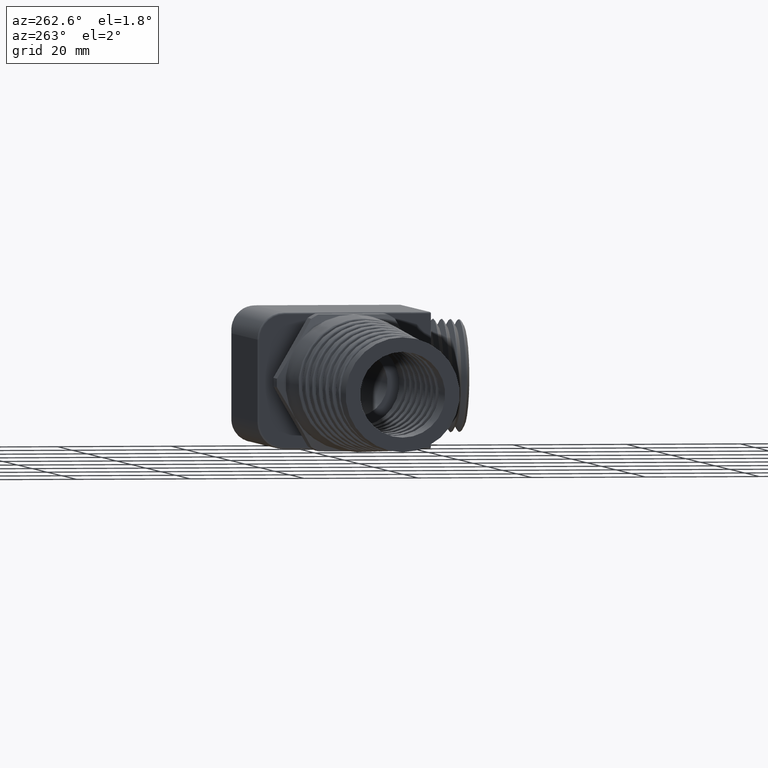
[diagram: clean part render]
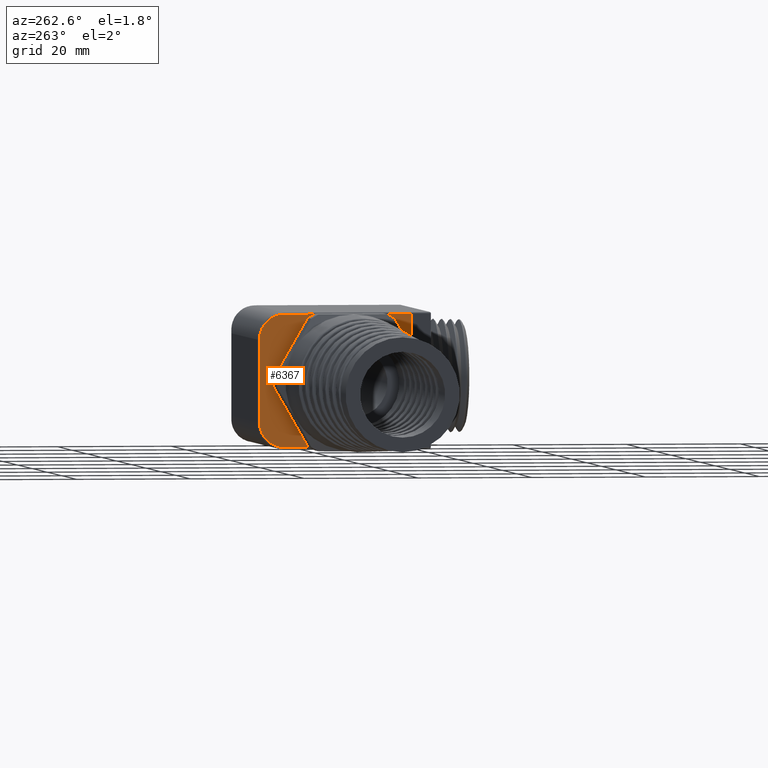
[diagram: same view with one face highlighted and labeled with its STEP entity id]
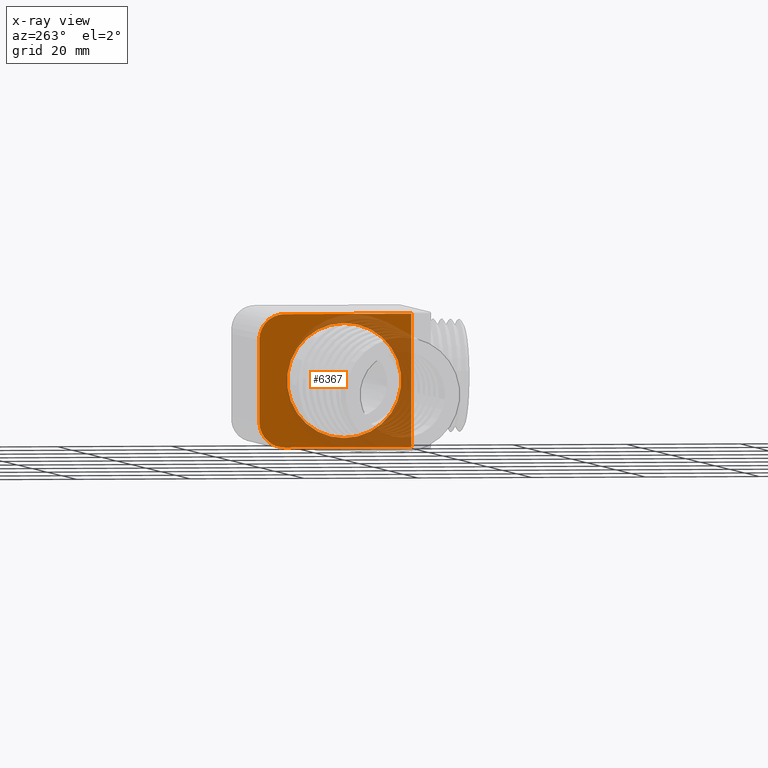
[diagram: x-ray of the same camera — body ghosted, the highlighted face saturated]
A machine part, auxiliary view. The second image highlights one B-rep face of the part: STEP entity #6367.
The next image is the same camera in x-ray: the body ghosted, the highlighted face saturated — about 43% of this face is hidden behind the body in this view.
In plain terms, the highlighted planar face has unit normal (1, 0, 0).
Its self-contained STEP definition (entity closure, byte-faithful):
#3942 = DIRECTION ( 'NONE',  ( -6.418815774587142800E-017, 1.000000000000000000, 0.0000000000000000000 ) ) ;
#3943 = DIRECTION ( 'NONE',  ( -1.000000000000000000, -6.418815774587142800E-017, 0.0000000000000000000 ) ) ;
#3944 = CARTESIAN_POINT ( 'NONE',  ( 3.848330791856151800E-017, 0.0000000000000000000, 0.0000000000000000000 ) ) ;
#3945 = AXIS2_PLACEMENT_3D ( 'NONE', #3944, #3943, #3942 ) ;
#3946 = CIRCLE ( 'NONE', #3945, 0.3950000000000000200 ) ;
#4839 = CARTESIAN_POINT ( 'NONE',  ( 3.848330791856151800E-017, 4.837354856632045600E-017, -0.3950000000000000200 ) ) ;
#4901 = CARTESIAN_POINT ( 'NONE',  ( 3.848330791856151800E-017, 1.627447239949505100E-033, 0.3950000000000000200 ) ) ;
#4902 = CARTESIAN_POINT ( 'NONE',  ( 1.198178944589600400E-017, 0.4133333333333332200, -0.4573446327683614600 ) ) ;
#4903 = DIRECTION ( 'NONE',  ( 6.418815774587142800E-017, -1.000000000000000000, 0.0000000000000000000 ) ) ;
#4904 = VECTOR ( 'NONE', #4903, 39.37007874015748100 ) ;
#4905 = CARTESIAN_POINT ( 'NONE',  ( 6.829619984160658000E-017, -0.4639999999999904800, -0.4573446327683613500 ) ) ;
#4906 = LINE ( 'NONE', #4905, #4904 ) ;
#4923 = DIRECTION ( 'NONE',  ( -6.418815774587142800E-017, 1.000000000000000000, 0.0000000000000000000 ) ) ;
#4924 = DIRECTION ( 'NONE',  ( 1.000000000000000000, 6.418815774587142800E-017, 0.0000000000000000000 ) ) ;
#4925 = CARTESIAN_POINT ( 'NONE',  ( 6.829619984160658000E-017, -0.4639999999999904800, 2.364919523357121200 ) ) ;
#4926 = AXIS2_PLACEMENT_3D ( 'NONE', #4925, #4924, #4923 ) ;
#4927 = PLANE ( 'NONE',  #4926 ) ;
#4928 = FACE_BOUND ( 'NONE', #6397, .T. ) ;
#4929 = FACE_OUTER_BOUND ( 'NONE', #6368, .T. ) ;
#4943 = DIRECTION ( 'NONE',  ( -6.418815774587142800E-017, 1.000000000000000000, 0.0000000000000000000 ) ) ;
#4944 = DIRECTION ( 'NONE',  ( -1.000000000000000000, -6.418815774587142800E-017, 0.0000000000000000000 ) ) ;
#4945 = CARTESIAN_POINT ( 'NONE',  ( 1.280553747030123400E-017, 0.4133333333333332200, -0.2833333333333332100 ) ) ;
#4946 = AXIS2_PLACEMENT_3D ( 'NONE', #4945, #4944, #4943 ) ;
#4947 = CIRCLE ( 'NONE', #4946, 0.1740112994350282700 ) ;
#4948 = CARTESIAN_POINT ( 'NONE',  ( 8.123247081963432300E-019, 0.5873446327683614600, -0.2833333333333332100 ) ) ;
#4949 = DIRECTION ( 'NONE',  ( 0.0000000000000000000, 0.0000000000000000000, -1.000000000000000000 ) ) ;
#4950 = VECTOR ( 'NONE', #4949, 39.37007874015748100 ) ;
#4951 = CARTESIAN_POINT ( 'NONE',  ( 8.123247081963312900E-019, 0.5873446327683615700, 2.364919523357121200 ) ) ;
#4952 = LINE ( 'NONE', #4951, #4950 ) ;
#4953 = CARTESIAN_POINT ( 'NONE',  ( 8.123247081963269600E-019, 0.5873446327683615700, 0.2833333333333332100 ) ) ;
#4954 = DIRECTION ( 'NONE',  ( -6.418815774587142800E-017, 1.000000000000000000, 0.0000000000000000000 ) ) ;
#4955 = DIRECTION ( 'NONE',  ( -1.000000000000000000, -6.418815774587142800E-017, 0.0000000000000000000 ) ) ;
#4956 = CARTESIAN_POINT ( 'NONE',  ( 1.280553747030123400E-017, 0.4133333333333332700, 0.2833333333333332100 ) ) ;
#4957 = AXIS2_PLACEMENT_3D ( 'NONE', #4956, #4955, #4954 ) ;
#4958 = CIRCLE ( 'NONE', #4957, 0.1740112994350282700 ) ;
#4959 = CARTESIAN_POINT ( 'NONE',  ( 1.198178944589600400E-017, 0.4133333333333332700, 0.4573446327683614600 ) ) ;
#4960 = DIRECTION ( 'NONE',  ( -6.418815774587142800E-017, 1.000000000000000000, 0.0000000000000000000 ) ) ;
#4961 = VECTOR ( 'NONE', #4960, 39.37007874015748100 ) ;
#4962 = CARTESIAN_POINT ( 'NONE',  ( 6.829619984160658000E-017, -0.4639999999999904800, 0.4573446327683613500 ) ) ;
#4963 = LINE ( 'NONE', #4962, #4961 ) ;
#5046 = CARTESIAN_POINT ( 'NONE',  ( 6.829619984160658000E-017, -0.4639999999999904800, -0.4573446327683613500 ) ) ;
#5048 = DIRECTION ( 'NONE',  ( 0.0000000000000000000, 0.0000000000000000000, 1.000000000000000000 ) ) ;
#5050 = VECTOR ( 'NONE', #5048, 39.37007874015748100 ) ;
#5051 = CARTESIAN_POINT ( 'NONE',  ( 6.829619984160658000E-017, -0.4639999999999904800, 2.364919523357121200 ) ) ;
#5053 = LINE ( 'NONE', #5051, #5050 ) ;
#6030 = EDGE_CURVE ( 'NONE', #6342, #6343, #3946, .T. ) ;
#6342 = VERTEX_POINT ( 'NONE', #4839 ) ;
#6343 = VERTEX_POINT ( 'NONE', #4901 ) ;
#6367 = ADVANCED_FACE ( 'NONE', ( #4929, #4928 ), #4927, .F. ) ;
#6368 = EDGE_LOOP ( 'NONE', ( #6383, #6386, #6387, #6390, #6393, #6396 ) ) ;
#6383 = ORIENTED_EDGE ( 'NONE', *, *, #6384, .T. ) ;
#6384 = EDGE_CURVE ( 'NONE', #6385, #6439, #4906, .T. ) ;
#6385 = VERTEX_POINT ( 'NONE', #4902 ) ;
#6386 = ORIENTED_EDGE ( 'NONE', *, *, #6438, .T. ) ;
#6387 = ORIENTED_EDGE ( 'NONE', *, *, #6388, .T. ) ;
#6388 = EDGE_CURVE ( 'NONE', #6559, #6389, #4963, .T. ) ;
#6389 = VERTEX_POINT ( 'NONE', #4959 ) ;
#6390 = ORIENTED_EDGE ( 'NONE', *, *, #6391, .T. ) ;
#6391 = EDGE_CURVE ( 'NONE', #6389, #6392, #4958, .T. ) ;
#6392 = VERTEX_POINT ( 'NONE', #4953 ) ;
#6393 = ORIENTED_EDGE ( 'NONE', *, *, #6394, .T. ) ;
#6394 = EDGE_CURVE ( 'NONE', #6392, #6395, #4952, .T. ) ;
#6395 = VERTEX_POINT ( 'NONE', #4948 ) ;
#6396 = ORIENTED_EDGE ( 'NONE', *, *, #6398, .T. ) ;
#6397 = EDGE_LOOP ( 'NONE', ( #6610, #6612 ) ) ;
#6398 = EDGE_CURVE ( 'NONE', #6395, #6385, #4947, .T. ) ;
#6438 = EDGE_CURVE ( 'NONE', #6439, #6559, #5053, .T. ) ;
#6439 = VERTEX_POINT ( 'NONE', #5046 ) ;
#6559 = VERTEX_POINT ( 'NONE', #6744 ) ;
#6610 = ORIENTED_EDGE ( 'NONE', *, *, #6611, .F. ) ;
#6611 = EDGE_CURVE ( 'NONE', #6343, #6342, #6836, .T. ) ;
#6612 = ORIENTED_EDGE ( 'NONE', *, *, #6030, .F. ) ;
#6744 = CARTESIAN_POINT ( 'NONE',  ( 6.829619984160658000E-017, -0.4639999999999904800, 0.4573446327683613500 ) ) ;
#6832 = DIRECTION ( 'NONE',  ( -6.418815774587142800E-017, 1.000000000000000000, 0.0000000000000000000 ) ) ;
#6833 = DIRECTION ( 'NONE',  ( -1.000000000000000000, -6.418815774587142800E-017, 0.0000000000000000000 ) ) ;
#6834 = CARTESIAN_POINT ( 'NONE',  ( 3.848330791856151800E-017, 0.0000000000000000000, 0.0000000000000000000 ) ) ;
#6835 = AXIS2_PLACEMENT_3D ( 'NONE', #6834, #6833, #6832 ) ;
#6836 = CIRCLE ( 'NONE', #6835, 0.3950000000000000200 ) ;